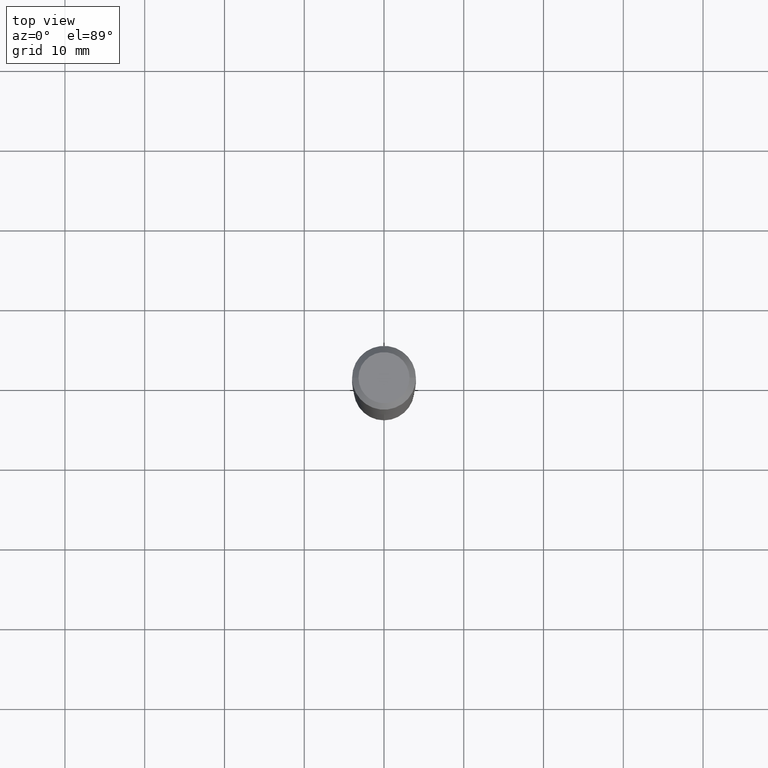
[diagram: clean part render]
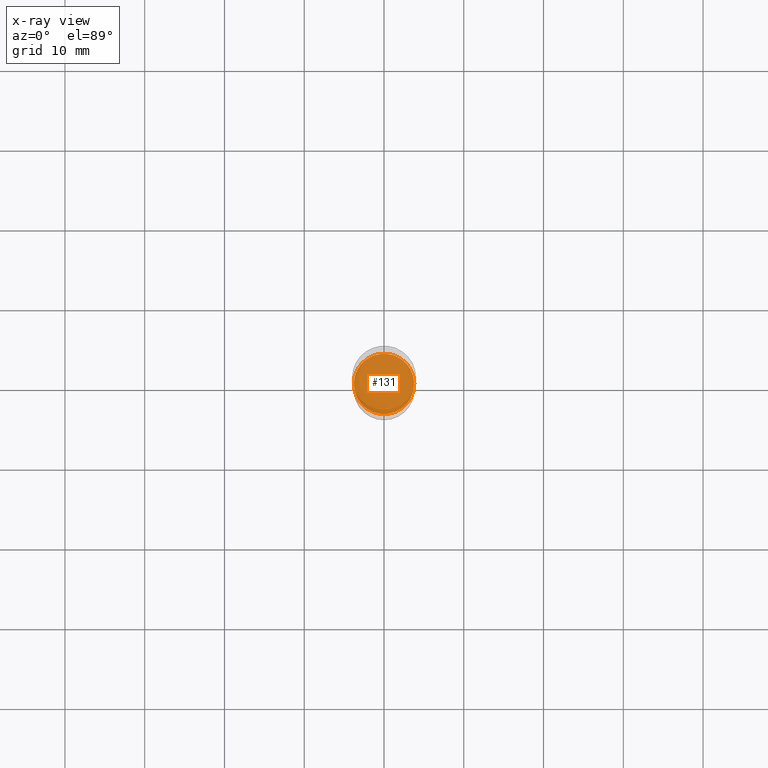
[diagram: x-ray — body ghosted, one internal face saturated and labeled with its STEP entity id]
A machine part, top view, then the same camera in x-ray: the body is ghosted and one INTERNAL B-rep face — a face not visible from any outside direction — is saturated and labeled: STEP entity #131.
In plain terms, the highlighted planar face has unit normal (-0, 0, 1).
Its self-contained STEP definition (entity closure, byte-faithful):
#9 = FACE_OUTER_BOUND ( 'NONE', #197, .T. ) ;
#11 = CARTESIAN_POINT ( 'NONE',  ( 4.390350147744175670E-29, -6.268256447625099205E-15, -1.795300000000000118 ) ) ;
#16 = CARTESIAN_POINT ( 'NONE',  ( 4.390350147744175670E-29, -6.268256447625099205E-15, -1.795300000000000118 ) ) ;
#90 = CIRCLE ( 'NONE', #426, 0.1491000000000000103 ) ;
#95 = VERTEX_POINT ( 'NONE', #300 ) ;
#102 = DIRECTION ( 'NONE',  ( -2.445468806185136597E-29, 3.491481338843145583E-15, 1.000000000000000000 ) ) ;
#124 = DIRECTION ( 'NONE',  ( -2.438088387897960049E-29, 3.491481338843145188E-15, 1.000000000000000000 ) ) ;
#131 = ADVANCED_FACE ( 'NONE', ( #9 ), #465, .F. ) ;
#137 = AXIS2_PLACEMENT_3D ( 'NONE', #16, #221, #417 ) ;
#162 = AXIS2_PLACEMENT_3D ( 'NONE', #11, #124, #435 ) ;
#197 = EDGE_LOOP ( 'NONE', ( #212, #414 ) ) ;
#212 = ORIENTED_EDGE ( 'NONE', *, *, #352, .F. ) ;
#213 = CARTESIAN_POINT ( 'NONE',  ( -0.1491000000000000103, -5.206188001432678554E-15, -1.795300000000000118 ) ) ;
#221 = DIRECTION ( 'NONE',  ( -2.445468806185136597E-29, 3.491481338843145583E-15, 1.000000000000000000 ) ) ;
#225 = CARTESIAN_POINT ( 'NONE',  ( 4.390350147744175670E-29, -6.268256447625099205E-15, -1.795300000000000118 ) ) ;
#226 = DIRECTION ( 'NONE',  ( 1.000000000000000000, -6.982962677686265133E-15, 0.000000000000000000 ) ) ;
#300 = CARTESIAN_POINT ( 'NONE',  ( 0.1491000000000000103, -7.309416182868121799E-15, -1.795300000000000118 ) ) ;
#346 = EDGE_CURVE ( 'NONE', #440, #95, #479, .T. ) ;
#352 = EDGE_CURVE ( 'NONE', #95, #440, #90, .T. ) ;
#414 = ORIENTED_EDGE ( 'NONE', *, *, #346, .F. ) ;
#417 = DIRECTION ( 'NONE',  ( 1.000000000000000000, -6.982962677686265133E-15, 0.000000000000000000 ) ) ;
#426 = AXIS2_PLACEMENT_3D ( 'NONE', #225, #102, #226 ) ;
#435 = DIRECTION ( 'NONE',  ( 1.000000000000000000, -6.982962677686265922E-15, 4.876176775795935793E-29 ) ) ;
#440 = VERTEX_POINT ( 'NONE', #213 ) ;
#465 = PLANE ( 'NONE',  #162 ) ;
#479 = CIRCLE ( 'NONE', #137, 0.1491000000000000103 ) ;